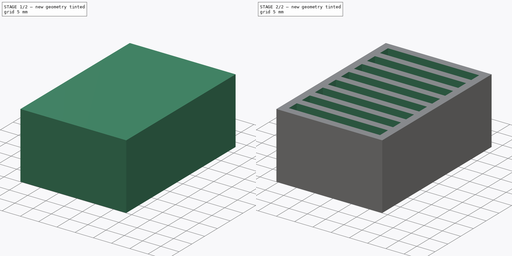
[diagram: build sequence overview — one tinted view per stage of 2, left to right]
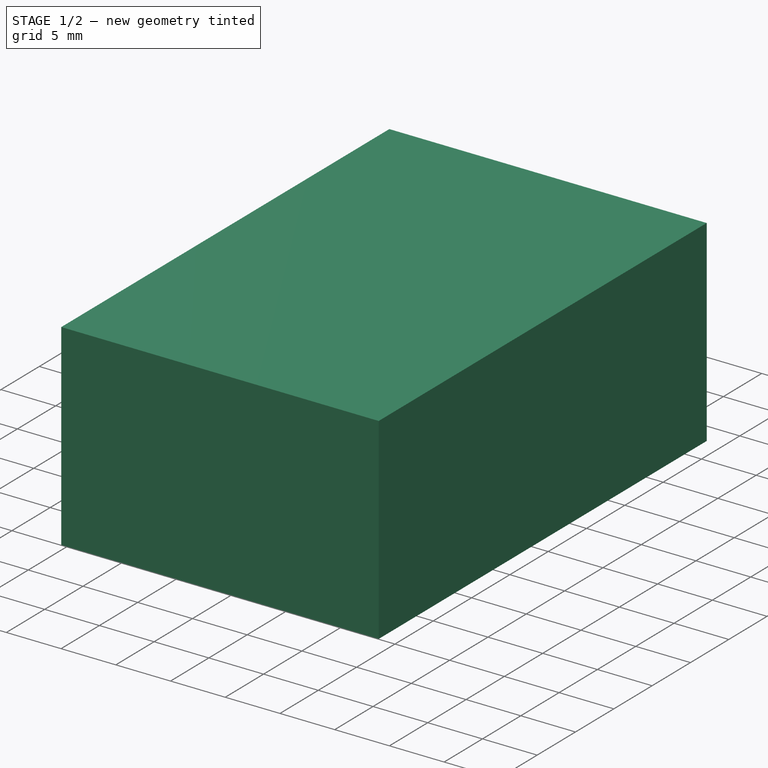
[diagram: stage 1 of 2 — iso view after this stage's code; geometry added in this stage tinted green]
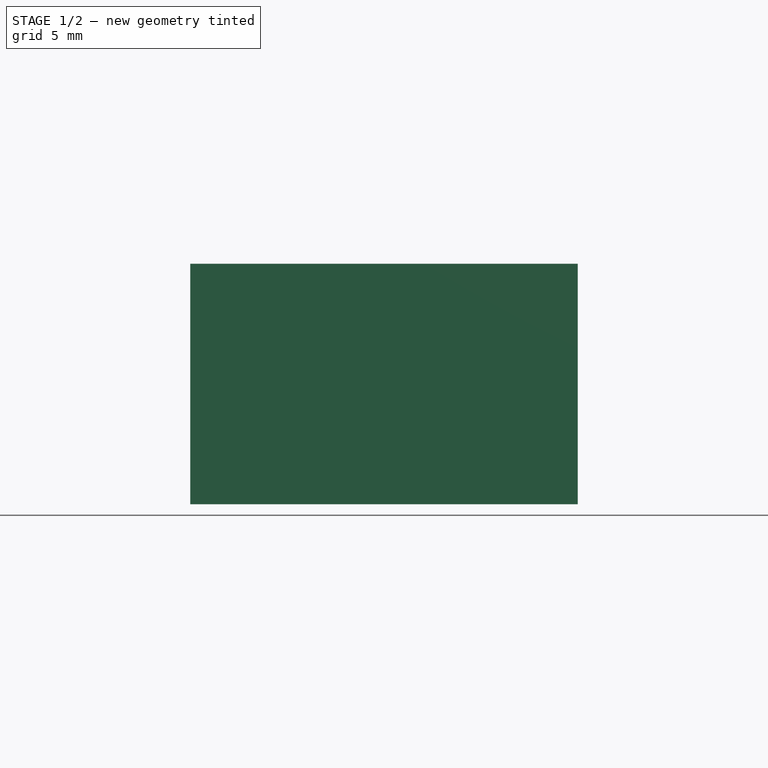
[diagram: stage 1 of 2 — front view after this stage's code; geometry added in this stage tinted green]
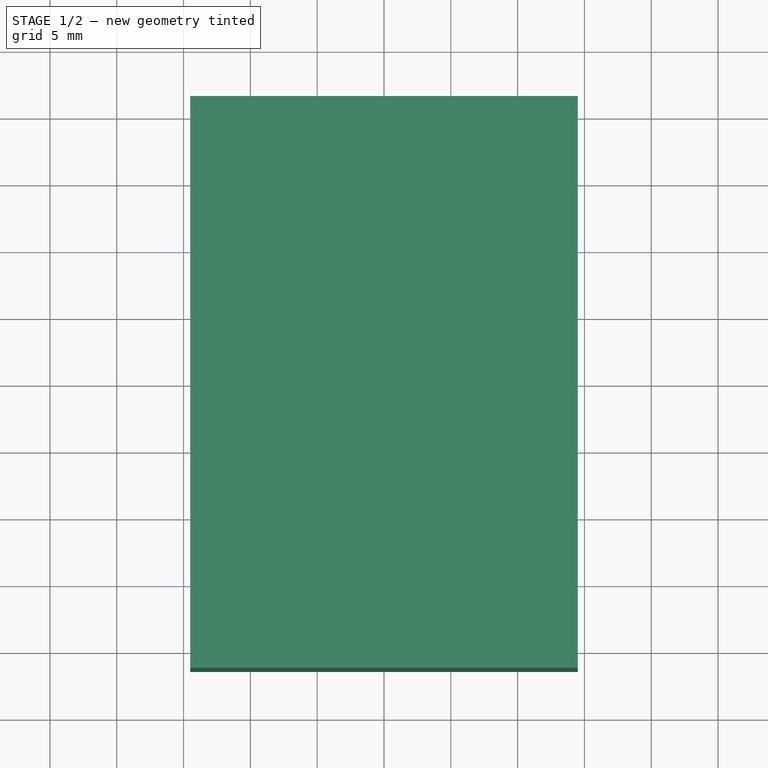
[diagram: stage 1 of 2 — top view after this stage's code; geometry added in this stage tinted green]
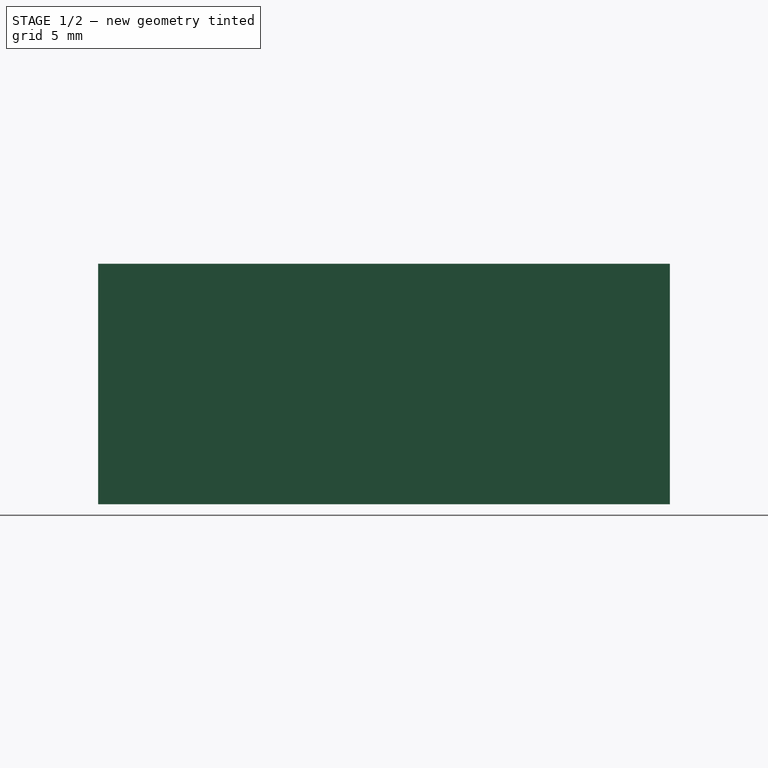
[diagram: stage 1 of 2 — right view after this stage's code; geometry added in this stage tinted green]
FCSTD DOCUMENT  (FreeCAD 1.0R39285 (Git))
Label: SD Card holder
License: All rights reserved
LicenseURL: https://en.wikipedia.org/wiki/All_rights_reserved
objects: Sketcher::SketchObject×4, PartDesign::Body×3, PartDesign::Pad×1, PartDesign::Pocket×1
note: 17 computed .brp shape members not serialized (recipe doc carries the construction recipe); baked Part::Feature solids carry a one-line shape summary decoded from their .brp

FEATURE [Sketcher::SketchObject] Sketch
  ArcFitTolerance = 1e-06
  AttachmentSupport = -> [XY_Plane]
  FullyConstrained = false
  MakeInternals = false
  MapMode = 5
  sketch-geometry (4):
    g0: LineSegment StartX=-25.0799 StartY=14.6836 StartZ=0 EndX=-25.0799 EndY=-15.8822 EndZ=0
    g1: LineSegment StartX=-25.0799 StartY=-15.8822 StartZ=0 EndX=21.2025 EndY=-15.8822 EndZ=0
    g2: LineSegment StartX=21.2025 StartY=-15.8822 StartZ=0 EndX=21.2025 EndY=14.6836 EndZ=0
    g3: LineSegment StartX=21.2025 StartY=14.6836 StartZ=0 EndX=-25.0799 EndY=14.6836 EndZ=0
  constraints (8):
    c: Coincident(g0,g1)
    c: Coincident(g1,g2)
    c: Coincident(g2,g3)
    c: Coincident(g3,g0)
    c: Vertical(g0)
    c: Vertical(g2)
    c: Horizontal(g1)
    c: Horizontal(g3)
FEATURE [Sketcher::SketchObject] Sketch001
  ArcFitTolerance = 1e-06
  AttachmentSupport = -> [XY_Plane]
  FullyConstrained = true
  MakeInternals = false
  MapMode = 5
FEATURE [PartDesign::Body] Body
  AllowCompound = false
  Group = -> [Sketch,Sketch001]
  Origin = -> Origin
FEATURE [PartDesign::Body] Body001
  AllowCompound = false
  Origin = -> Origin001
FEATURE [Sketcher::SketchObject] Sketch002
  ArcFitTolerance = 1e-06
  AttachmentSupport = -> [XY_Plane002]
  FullyConstrained = true
  MakeInternals = false
  MapMode = 5
  sketch-geometry (4):
    g0: LineSegment StartX=-14.5 StartY=21.4 StartZ=0 EndX=-14.5 EndY=-21.4 EndZ=0
    g1: LineSegment StartX=-14.5 StartY=-21.4 StartZ=0 EndX=14.5 EndY=-21.4 EndZ=0
    g2: LineSegment StartX=14.5 StartY=-21.4 StartZ=0 EndX=14.5 EndY=21.4 EndZ=0
    g3: LineSegment StartX=14.5 StartY=21.4 StartZ=0 EndX=-14.5 EndY=21.4 EndZ=0
  constraints (12):
    c: Coincident(g0,g1)
    c: Coincident(g1,g2)
    c: Coincident(g2,g3)
    c: Coincident(g3,g0)
    c: Vertical(g0)
    c: Vertical(g2)
    c: Horizontal(g1)
    c: Horizontal(g3)
    c: Symmetric(g0,g1,g-1)
    c: Symmetric(g2,g0,g-1)
    c: Distance(g0,g2) = 29
    c: Distance(g2,g1) = 42.8
FEATURE [PartDesign::Pad] Pad
  Direction = (0,0,1)
  Length = 18
  Length2 = 10
  Profile = -> Sketch002
  ReferenceAxis = -> Sketch002 [N_Axis]
  Refine = true
  Suppressed = false
  Type = 0
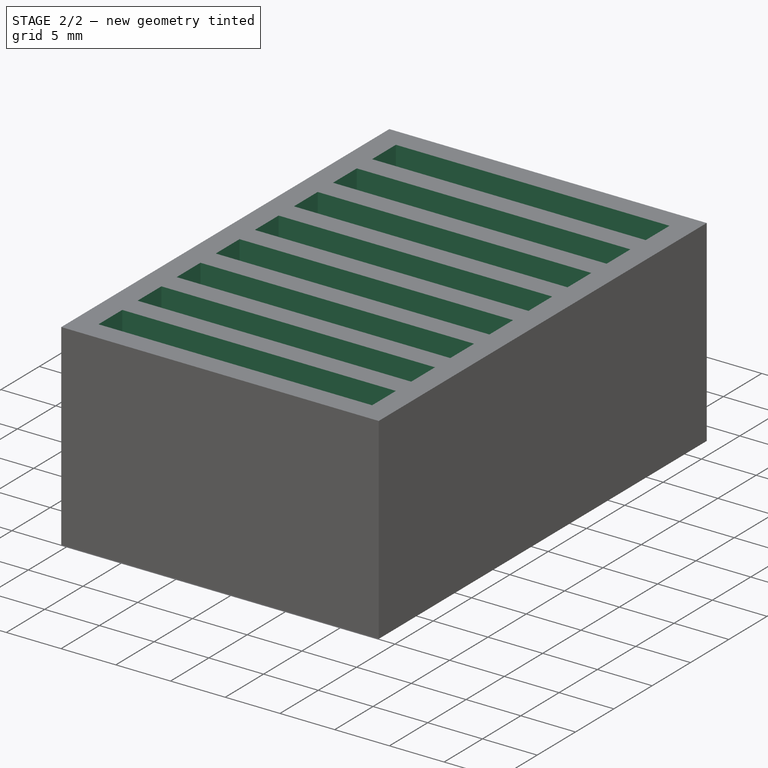
[diagram: stage 2 of 2 — iso view after this stage's code; geometry added in this stage tinted green]
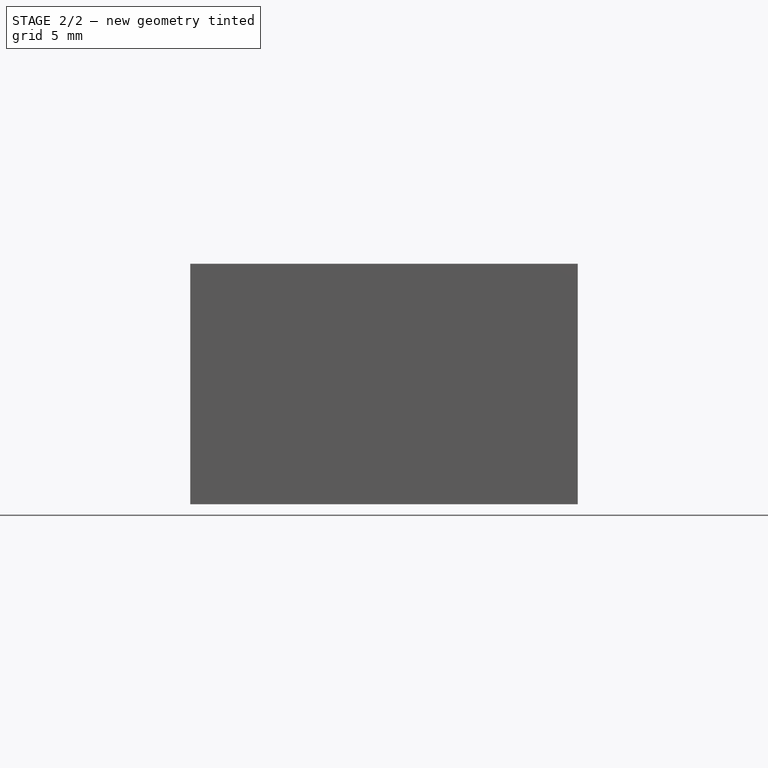
[diagram: stage 2 of 2 — front view after this stage's code; geometry added in this stage tinted green]
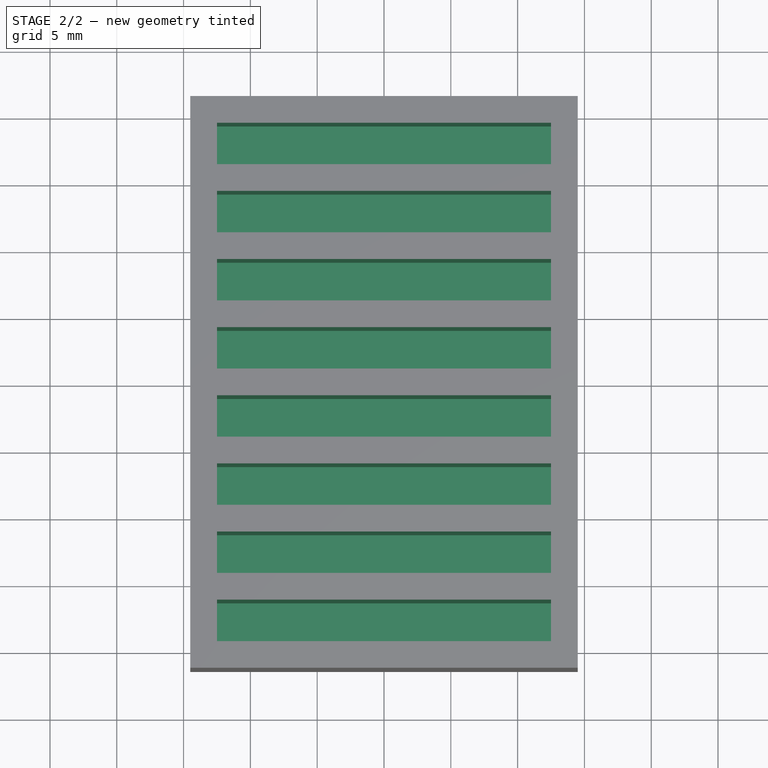
[diagram: stage 2 of 2 — top view after this stage's code; geometry added in this stage tinted green]
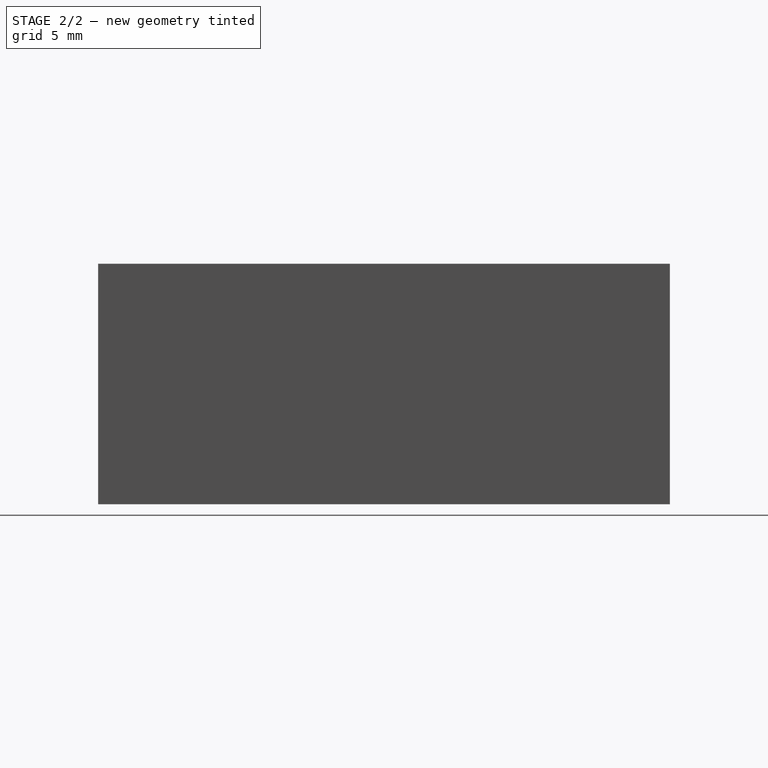
[diagram: stage 2 of 2 — right view after this stage's code; geometry added in this stage tinted green]
FEATURE [Sketcher::SketchObject] Sketch003
  ArcFitTolerance = 1e-06
  AttachmentSupport = -> [Pad]
  FullyConstrained = true
  MakeInternals = false
  MapMode = 5
  Placement = pos=(0,0,18) rot=(0,0,1;0rad)
  sketch-geometry (41):
    g0: LineSegment StartX=-12.5 StartY=19.4 StartZ=0 EndX=-12.5 EndY=16.3 EndZ=0
    g1: LineSegment StartX=-12.5 StartY=16.3 StartZ=0 EndX=12.5 EndY=16.3 EndZ=0
    g2: LineSegment StartX=12.5 StartY=16.3 StartZ=0 EndX=12.5 EndY=19.4 EndZ=0
    g3: LineSegment StartX=12.5 StartY=19.4 StartZ=0 EndX=-12.5 EndY=19.4 EndZ=0
    g4: LineSegment StartX=-12.5 StartY=14.3 StartZ=0 EndX=-12.5 EndY=11.2 EndZ=0
    g5: LineSegment StartX=-12.5 StartY=11.2 StartZ=0 EndX=12.5 EndY=11.2 EndZ=0
    g6: LineSegment StartX=12.5 StartY=11.2 StartZ=0 EndX=12.5 EndY=14.3 EndZ=0
    g7: LineSegment StartX=12.5 StartY=14.3 StartZ=0 EndX=-12.5 EndY=14.3 EndZ=0
    g8: LineSegment StartX=-12.5 StartY=9.2 StartZ=0 EndX=-12.5 EndY=6.1 EndZ=0
    g9: LineSegment StartX=-12.5 StartY=6.1 StartZ=0 EndX=12.5 EndY=6.1 EndZ=0
    g10: LineSegment StartX=12.5 StartY=6.1 StartZ=0 EndX=12.5 EndY=9.2 EndZ=0
    g11: LineSegment StartX=12.5 StartY=9.2 StartZ=0 EndX=-12.5 EndY=9.2 EndZ=0
    g12: LineSegment StartX=-12.5 StartY=4.1 StartZ=0 EndX=-12.5 EndY=1 EndZ=0
    g13: LineSegment StartX=-12.5 StartY=1 StartZ=0 EndX=12.5 EndY=1 EndZ=0
    g14: LineSegment StartX=12.5 StartY=1 StartZ=0 EndX=12.5 EndY=4.1 EndZ=0
    g15: LineSegment StartX=12.5 StartY=4.1 StartZ=0 EndX=-12.5 EndY=4.1 EndZ=0
    g16: LineSegment [constr] StartX=-12.5 StartY=16.3 StartZ=0 EndX=-12.5 EndY=14.3 EndZ=0
    g17: LineSegment [constr] StartX=-12.5 StartY=11.2 StartZ=0 EndX=-12.5 EndY=9.2 EndZ=0
    g18: LineSegment [constr] StartX=-12.5 StartY=6.1 StartZ=0 EndX=-12.5 EndY=4.1 EndZ=0
    g19: LineSegment StartX=-12.5 StartY=-19.4 StartZ=0 EndX=-12.5 EndY=-16.3 EndZ=0
    g20: LineSegment StartX=-12.5 StartY=-16.3 StartZ=0 EndX=12.5 EndY=-16.3 EndZ=0
    g21: LineSegment StartX=12.5 StartY=-16.3 StartZ=0 EndX=12.5 EndY=-19.4 EndZ=0
    g22: LineSegment StartX=12.5 StartY=-19.4 StartZ=0 EndX=-12.5 EndY=-19.4 EndZ=0
    g23: LineSegment StartX=-12.5 StartY=-14.3 StartZ=0 EndX=-12.5 EndY=-11.2 EndZ=0
    g24: LineSegment StartX=-12.5 StartY=-11.2 StartZ=0 EndX=12.5 EndY=-11.2 EndZ=0
    g25: LineSegment StartX=12.5 StartY=-11.2 StartZ=0 EndX=12.5 EndY=-14.3 EndZ=0
    g26: LineSegment StartX=12.5 StartY=-14.3 StartZ=0 EndX=-12.5 EndY=-14.3 EndZ=0
    g27: LineSegment StartX=-12.5 StartY=-9.2 StartZ=0 EndX=-12.5 EndY=-6.1 EndZ=0
    g28: LineSegment StartX=-12.5 StartY=-6.1 StartZ=0 EndX=12.5 EndY=-6.1 EndZ=0
    g29: LineSegment StartX=12.5 StartY=-6.1 StartZ=0 EndX=12.5 EndY=-9.2 EndZ=0
    g30: LineSegment StartX=12.5 StartY=-9.2 StartZ=0 EndX=-12.5 EndY=-9.2 EndZ=0
    g31: LineSegment StartX=-12.5 StartY=-4.1 StartZ=0 EndX=-12.5 EndY=-1 EndZ=0
    g32: LineSegment StartX=-12.5 StartY=-1 StartZ=0 EndX=12.5 EndY=-1 EndZ=0
    g33: LineSegment StartX=12.5 StartY=-1 StartZ=0 EndX=12.5 EndY=-4.1 EndZ=0
    g34: LineSegment StartX=12.5 StartY=-4.1 StartZ=0 EndX=-12.5 EndY=-4.1 EndZ=0
    g35: LineSegment [constr] StartX=-12.5 StartY=-16.3 StartZ=0 EndX=-12.5 EndY=-14.3 EndZ=0
    g36: LineSegment [constr] StartX=-12.5 StartY=-11.2 StartZ=0 EndX=-12.5 EndY=-9.2 EndZ=0
    g37: LineSegment [constr] StartX=-12.5 StartY=-6.1 StartZ=0 EndX=-12.5 EndY=-4.1 EndZ=0
    g38: LineSegment [constr] StartX=-12.5 StartY=1 StartZ=0 EndX=-12.5 EndY=-1 EndZ=0
    g39: GeomPoint [constr] X=37.5 Y=-19.4 Z=0
    g40: GeomPoint [constr] X=-12.5 Y=19.4 Z=0
  constraints (112):
    c: Coincident(g0,g1)
    c: Coincident(g1,g2)
    c: Coincident(g2,g3)
    c: Coincident(g3,g0)
    c: Vertical(g0)
    c: Vertical(g2)
    c: Horizontal(g1)
    c: Horizontal(g3)
    c: Coincident(g4,g5)
    c: Coincident(g5,g6)
    c: Coincident(g6,g7)
    c: Coincident(g7,g4)
    c: Vertical(g4)
    c: Vertical(g6)
    c: Horizontal(g5)
    c: Horizontal(g7)
    c: Coincident(g8,g9)
    c: Coincident(g9,g10)
    c: Coincident(g10,g11)
    c: Coincident(g11,g8)
    c: Vertical(g8)
    c: Vertical(g10)
    c: Horizontal(g9)
    c: Horizontal(g11)
    c: Coincident(g12,g13)
    c: Coincident(g13,g14)
    c: Coincident(g14,g15)
    c: Coincident(g15,g12)
    c: Vertical(g12)
    c: Vertical(g14)
    c: Horizontal(g13)
    c: Horizontal(g15)
    c: Equal(g3,g7)
    c: Equal(g11,g15)
    c: Equal(g0,g4)
    c: Equal(g8,g12)
    c: Vertical(g0,g4)
    c: Vertical(g0,g8)
    c: Vertical(g0,g12)
    c: Equal(g3,g11)
    c: Equal(g0,g8)
    c: Coincident(g16,g0)
    c: Coincident(g16,g4)
    c: Coincident(g17,g4)
    c: Coincident(g17,g8)
    c: Coincident(g18,g8)
    c: Coincident(g18,g12)
    c: Equal(g16,g17)
    c: Equal(g16,g18)
    c: DistanceY(g16,g16) = 2
    c: Distance(g3,g1) = 3.1
    c: DistanceX(g3,g3) = 25
    c: Coincident(g19,g20)
    c: Coincident(g20,g21)
    c: Coincident(g21,g22)
    c: Coincident(g22,g19)
    c: Vertical(g19)
    c: Vertical(g21)
    c: Horizontal(g20)
    c: Horizontal(g22)
    c: Coincident(g23,g24)
    c: Coincident(g24,g25)
    c: Coincident(g25,g26)
    c: Coincident(g26,g23)
    c: Vertical(g23)
    c: Vertical(g25)
    c: Horizontal(g24)
    c: Horizontal(g26)
    c: Coincident(g27,g28)
    c: Coincident(g28,g29)
    c: Coincident(g29,g30)
    c: Coincident(g30,g27)
    c: Vertical(g27)
    c: Vertical(g29)
    c: Horizontal(g28)
    c: Horizontal(g30)
    c: Coincident(g31,g32)
    c: Coincident(g32,g33)
    c: Coincident(g33,g34)
    c: Coincident(g34,g31)
    c: Vertical(g31)
    c: Vertical(g33)
    c: Horizontal(g32)
    c: Horizontal(g34)
    c: Equal(g22,g26)
    c: Equal(g30,g34)
    c: Equal(g19,g23)
    c: Equal(g27,g31)
    c: Equal(g22,g30)
    c: Equal(g19,g27)
    c: Coincident(g35,g19)
    c: Coincident(g35,g23)
    c: Coincident(g36,g23)
    c: Coincident(g36,g27)
    c: Coincident(g37,g27)
    c: Coincident(g37,g31)
    c: Equal(g35,g36)
    c: Equal(g35,g37)
    c: Distance(g22,g20) = 3.1
    c: Coincident(g38,g12)
    c: Coincident(g38,g31)
    c: Vertical(g38)
    c: Vertical(g37)
    c: Vertical(g36)
    c: Vertical(g35)
    c: Equal(g18,g38)
    c: Equal(g38,g37)
    c: Equal(g3,g32)
    c: Symmetric(g39,g19,g21)
    c: Coincident(g40,g0)
    c: Distance(g13,g-1) = 1
    c: Distance(g33,g-2) = 12.5
FEATURE [PartDesign::Pocket] Pocket
  BaseFeature = -> Pad
  Direction = (0,0,-1)
  Length = 16
  Length2 = 5
  Profile = -> Sketch003
  ReferenceAxis = -> Sketch003 [N_Axis]
  Refine = true
  Suppressed = false
  Type = 0
FEATURE [PartDesign::Body] Body002
  AllowCompound = false
  Group = -> [Sketch002,Pad,Sketch003,Pocket]
  Origin = -> Origin002
  Tip = -> Pad
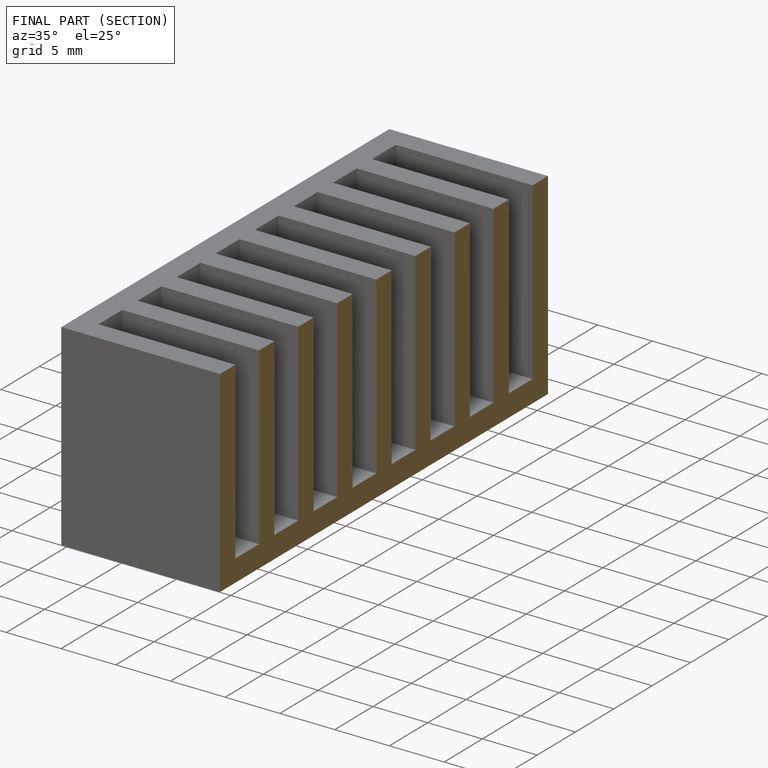
[diagram: finished part — half-section view (interior)]
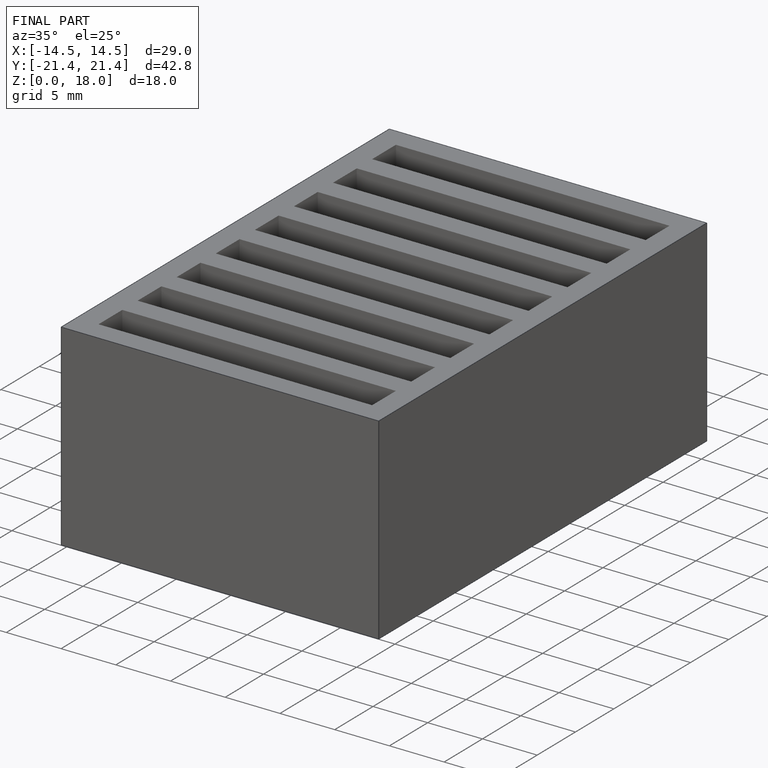
[diagram: finished part — iso view with bounding-box wireframe]
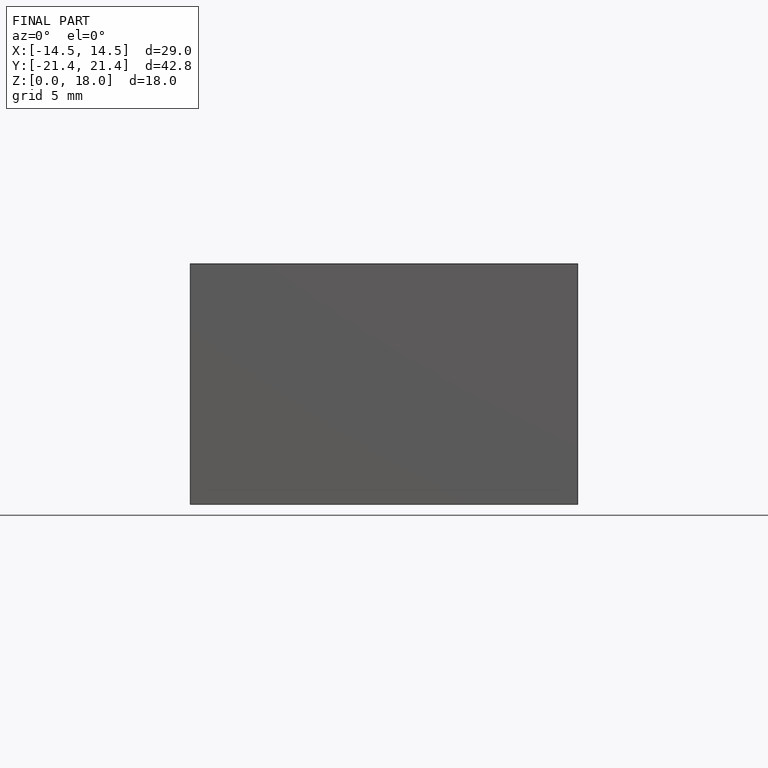
[diagram: finished part — front view with bounding-box wireframe]
